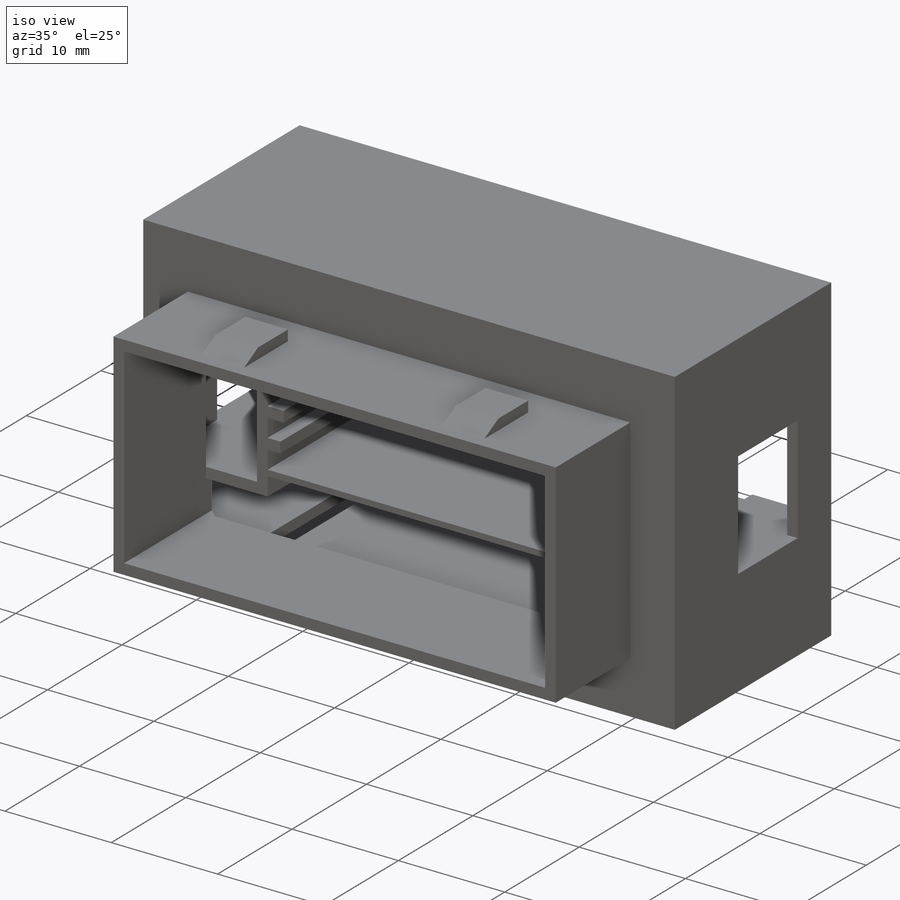
[diagram: iso view]
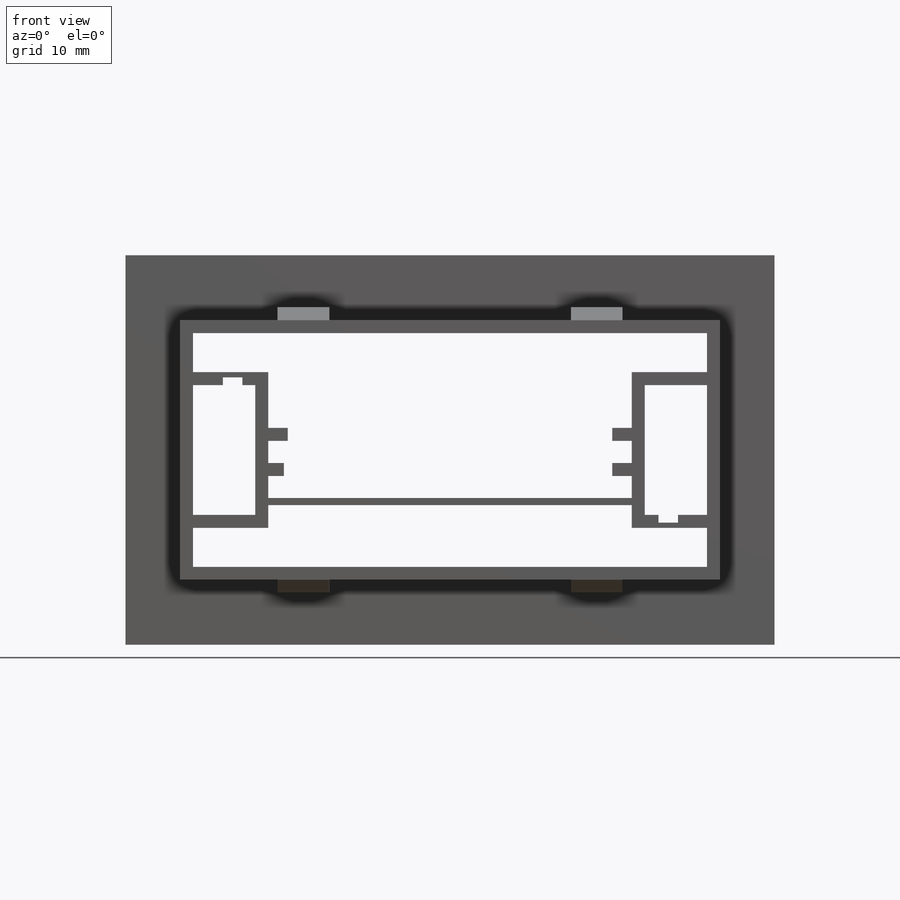
[diagram: front view]
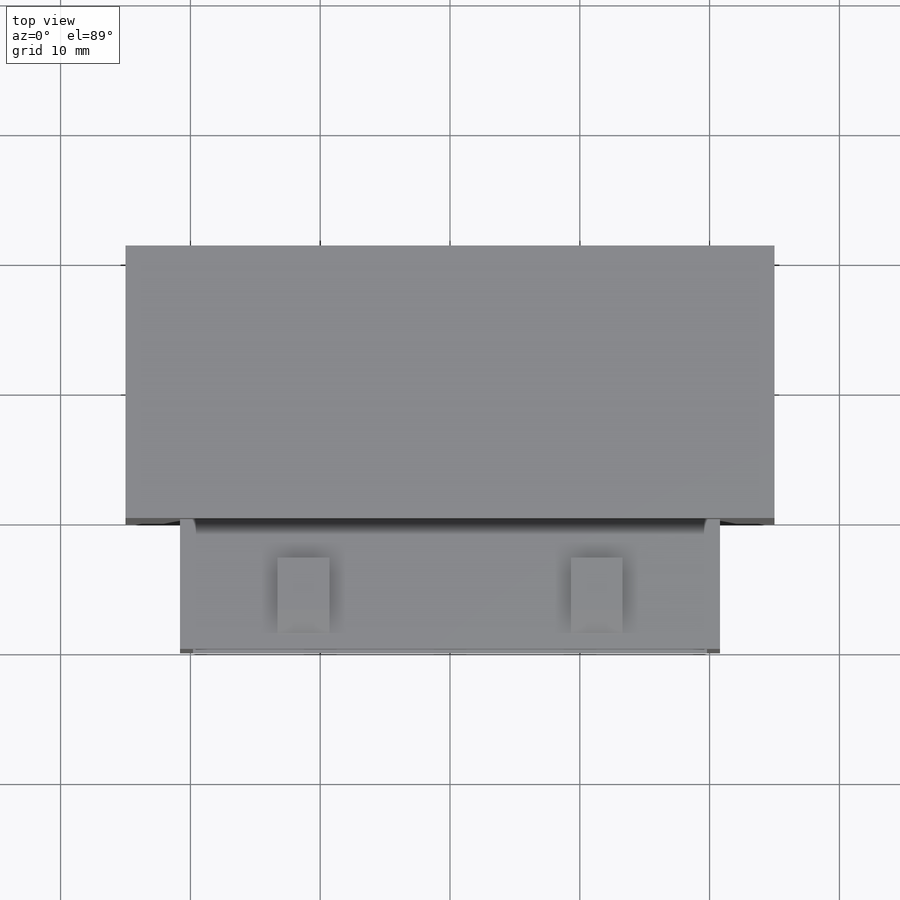
[diagram: top view]
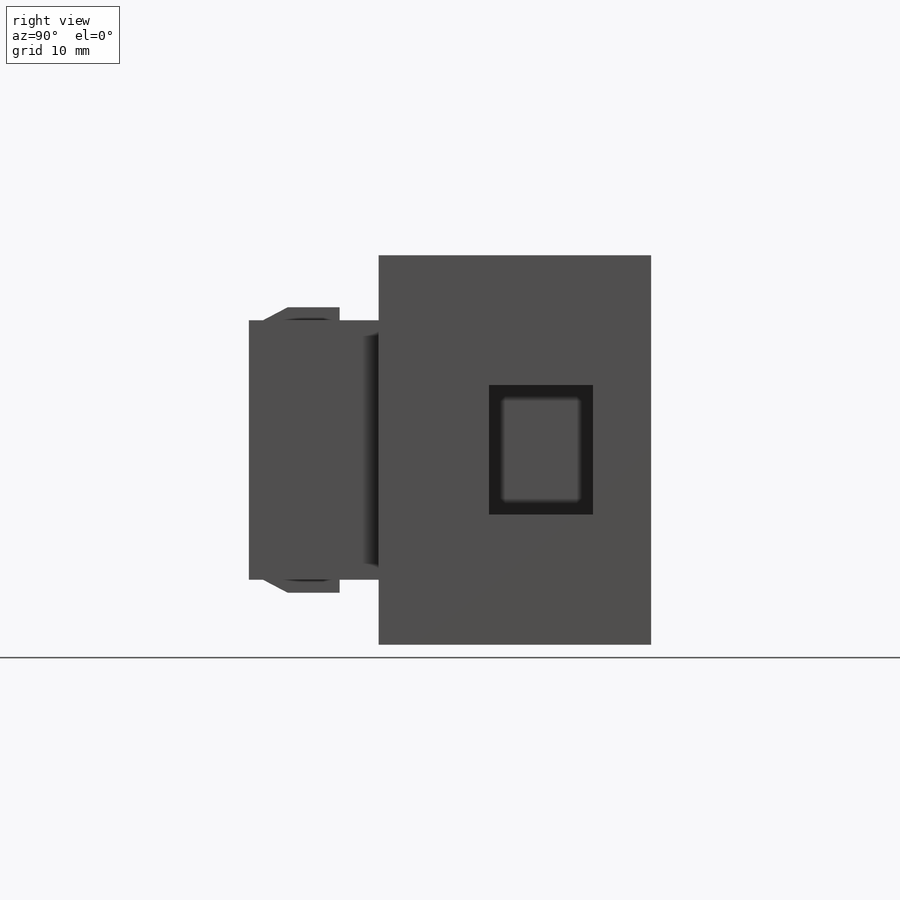
[diagram: right view]
SOLIDWORKS PART (.sldprt)
format: sldprt  version: not decoded by parser v0  size: 694,784 bytes
history: native  units: mm
features: sketch x23, extrude x14, cut_extrude x9, chamfer x3, material x1 (+12 scaffold rows collapsed)
feature tree (62):
  scaffold x12  (default folders/planes/origin — collapsed)
  material  "Material <not specified>"
  sketch  "Sketch1"  dims[D1=1.0mm]
  extrude  "Boss-Extrude2"  Depth=10mm
  sketch  "Sketch2"  dims[D1=10.0mm]
  extrude  "Boss-Extrude3"  Depth=1mm
  sketch  "Sketch3"  dims[D1=1.0mm]
  cut_extrude  "Cut-Extrude1"  Depth=27mm
  sketch  "Sketch4"  dims[D1=10.0mm]
  extrude  "Boss-Extrude4"  Depth=1mm
  sketch  "Sketch5"
  cut_extrude  "Cut-Extrude2"  Depth=27mm
  sketch  "Sketch6"  dims[D1=30.0mm]
  extrude  "Boss-Extrude6"  Depth=1mm
  sketch  "Sketch7"  dims[D1=1.0mm]
  extrude  "Boss-Extrude7"  Depth=20mm
  sketch  "Sketch8"  dims[D1=1.0mm]
  extrude  "Boss-Extrude8"  Depth=20mm
  sketch  "Sketch9"  dims[D1=1.0mm]
  extrude  "Boss-Extrude9"  Depth=20mm
  sketch  "Sketch10"  dims[D1=4.0mm]
  extrude  "Boss-Extrude10"  Depth=20mm
  sketch  "Sketch11"  dims[D1=8.0mm]
  cut_extrude  "Cut-Extrude3"  Depth=1mm
  sketch  "Sketch12"  dims[D1=8.0mm]
  cut_extrude  "Cut-Extrude4"  Depth=1mm
  sketch  "Sketch13"  dims[D1=~1.243644mm]
  cut_extrude  "Cut-Extrude5"  Depth=10mm
  chamfer  "Chamfer2"  Distance=5mm Angle=45deg
  chamfer  "Chamfer3"  Distance=5mm Angle=45deg
  chamfer  "Chamfer4"  Distance=4mm Angle=45deg
  sketch  "Sketch16"  dims[c1.D1=4.0mm c1.D4=1.2mm c2.D1=1.0mm c2.D2=1.0mm c2.D3=1.0mm]
  extrude  "Boss-Extrude11"  Depth=20mm
  sketch  "Sketch17"  dims[D1=1.0mm]
  extrude  "Boss-Extrude12"  Depth=20mm
  sketch  "Sketch18"  dims[D1=0.0mm]
  extrude  "Boss-Extrude13"  Depth=20mm
  sketch  "Sketch19"
  cut_extrude  "Cut-Extrude6"  Depth=20mm
  sketch  "Sketch20"  dims[D1=1.5mm]
  extrude  "Boss-Extrude14"  Depth=20mm
  sketch  "Sketch22"  dims[D1=0.3mm]
  extrude  "Boss-Extrude16"  Depth=20mm
  sketch  "Sketch24"
  cut_extrude  "Cut-Extrude7"  Depth=20mm
  sketch  "Sketch25"  dims[D1=1.0mm]
  extrude  "Boss-Extrude17"  Depth=20mm
  sketch  "Sketch26"  dims[D1=0.6mm]
  cut_extrude  "Cut-Extrude8"  Depth=20mm
  sketch  "Sketch27"  dims[D1=1.5mm]
  cut_extrude  "Cut-Extrude9"  Depth=20mm
decode coverage: 46 of 49 modeling features carry decoded parameters
note: ~ marks probable driven/reference dimensions
note: suppression state not decoded; provenance and decode notes live in map.json
